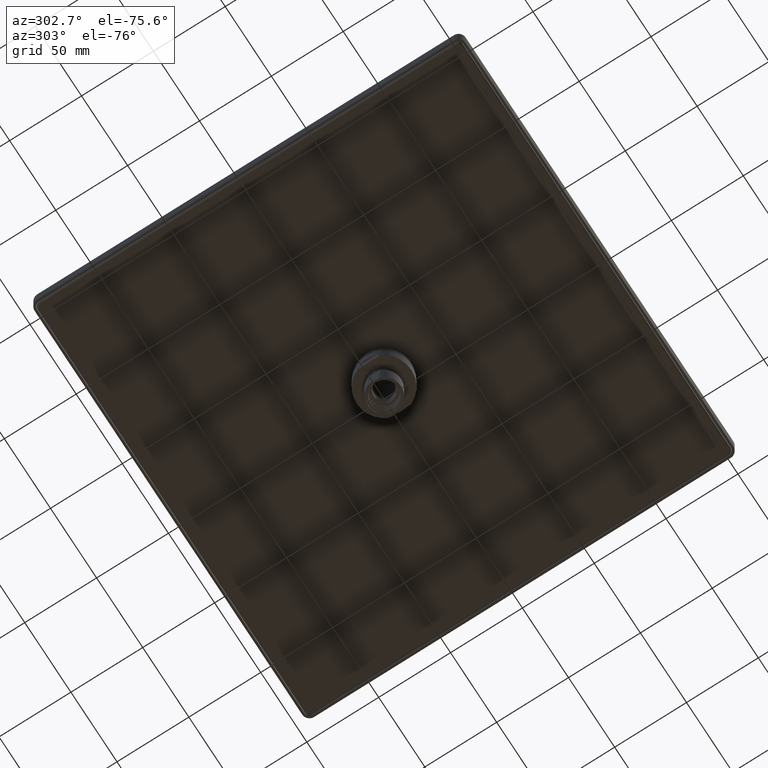
[diagram: clean part render]
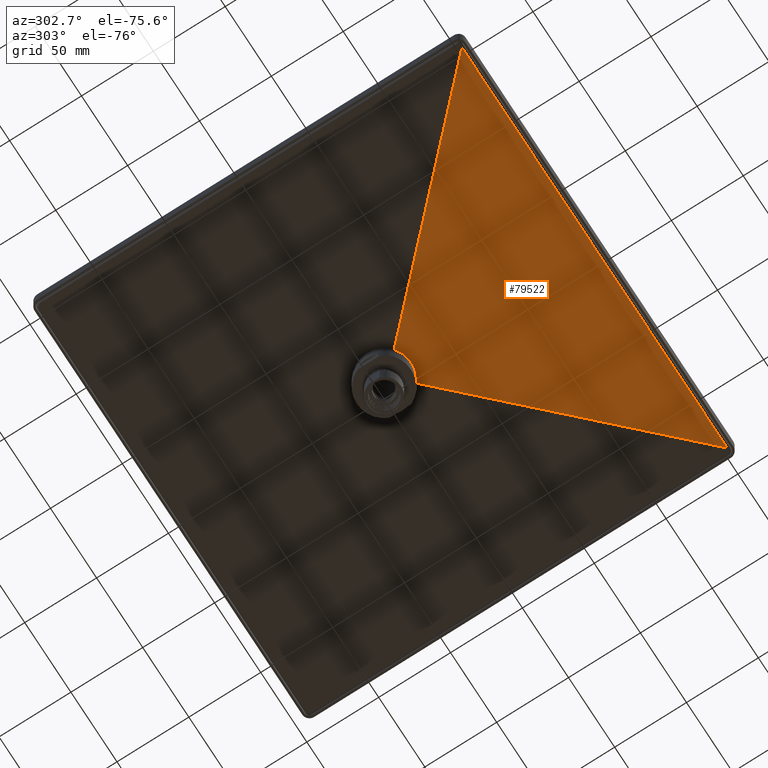
[diagram: same view with one face highlighted and labeled with its STEP entity id]
A machine part, auxiliary view. The second image highlights one B-rep face of the part: STEP entity #79522.
In plain terms, the highlighted planar face has unit normal (0, 0.0137, 0.9999).
Its self-contained STEP definition (entity closure, byte-faithful):
#78318=CARTESIAN_POINT('',(4.188700676331E-1,-5.270524384858E-1,
1.024022247137E-1));
#78319=CARTESIAN_POINT('',(3.575615083385E-1,-5.757768509029E-1,
1.017327289706E-1));
#78320=CARTESIAN_POINT('',(2.257088801407E-1,-6.467655864419E-1,
1.007573112304E-1));
#78321=CARTESIAN_POINT('',(7.831510730837E-2,-6.732283464567E-1,
1.003937007874E-1));
#78322=CARTESIAN_POINT('',(0.E0,-6.732283464567E-1,1.003937007874E-1));
#78446=DIRECTION('',(7.070734080763E-1,7.070734080762E-1,9.715512480473E-3));
#78447=VECTOR('',#78446,7.418483586977E0);
#78448=CARTESIAN_POINT('',(-5.664282540236E0,-5.772464911086E0,
3.032785483883E-2));
#78449=LINE('',#78448,#78447);
#78450=CARTESIAN_POINT('',(-4.188700676348E-1,-5.270524384844E-1,
1.024022247137E-1));
#78451=CARTESIAN_POINT('',(-3.575615083401E-1,-5.757768509020E-1,
1.017327289706E-1));
#78452=CARTESIAN_POINT('',(-2.257088801419E-1,-6.467655864417E-1,
1.007573112304E-1));
#78453=CARTESIAN_POINT('',(-7.831510730879E-2,-6.732283464567E-1,
1.003937007874E-1));
#78454=CARTESIAN_POINT('',(0.E0,-6.732283464567E-1,1.003937007874E-1));
#78456=DIRECTION('',(7.070734080764E-1,-7.070734080761E-1,-9.715512486016E-3));
#78457=VECTOR('',#78456,7.418483586976E0);
#78458=CARTESIAN_POINT('',(4.188700676323E-1,-5.270524384865E-1,
1.024022247140E-1));
#78459=LINE('',#78458,#78457);
#78464=DIRECTION('',(1.E0,5.746842402508E-14,-3.654693841650E-12));
#78465=VECTOR('',#78464,1.132856508047E1);
#78466=CARTESIAN_POINT('',(-5.664282540236E0,-5.772464911086E0,
3.032785483883E-2));
#78467=LINE('',#78466,#78465);
#78628=CARTESIAN_POINT('',(4.188700676323E-1,-5.270524384865E-1,
1.024022247140E-1));
#79193=VERTEX_POINT('',#78628);
#79194=VERTEX_POINT('',#78322);
#79219=VERTEX_POINT('',#78450);
#79224=CARTESIAN_POINT('',(-5.664282540236E0,-5.772464911086E0,
3.032785483883E-2));
#79225=CARTESIAN_POINT('',(5.664282540234E0,-5.772464911086E0,
3.032785479742E-2));
#79226=VERTEX_POINT('',#79224);
#79227=VERTEX_POINT('',#79225);
#79507=CARTESIAN_POINT('',(-6.535433070866E0,-5.830708661417E0,
2.952755905512E-2));
#79508=DIRECTION('',(0.E0,1.373916109839E-2,-9.999056132717E-1));
#79509=DIRECTION('',(0.E0,9.999056132717E-1,1.373916109839E-2));
#79510=AXIS2_PLACEMENT_3D('',#79507,#79508,#79509);
#79511=PLANE('',#79510);
#79513=ORIENTED_EDGE('',*,*,#79512,.F.);
#79515=ORIENTED_EDGE('',*,*,#79514,.T.);
#79516=ORIENTED_EDGE('',*,*,#79487,.T.);
#79517=ORIENTED_EDGE('',*,*,#79364,.F.);
#79519=ORIENTED_EDGE('',*,*,#79518,.T.);
#79520=EDGE_LOOP('',(#79513,#79515,#79516,#79517,#79519));
#79521=FACE_OUTER_BOUND('',#79520,.F.);
#79522=ADVANCED_FACE('',(#79521),#79511,.F.);
#78323=B_SPLINE_CURVE_WITH_KNOTS('',3,(#78318,#78319,#78320,#78321,#78322),
.UNSPECIFIED.,.F.,.F.,(4,1,4),(0.E0,5.E-1,1.E0),.UNSPECIFIED.);
#78455=B_SPLINE_CURVE_WITH_KNOTS('',3,(#78450,#78451,#78452,#78453,#78454),
.UNSPECIFIED.,.F.,.F.,(4,1,4),(0.E0,5.E-1,1.E0),.UNSPECIFIED.);
#79364=EDGE_CURVE('',#79193,#79194,#78323,.T.);
#79487=EDGE_CURVE('',#79219,#79194,#78455,.T.);
#79512=EDGE_CURVE('',#79226,#79227,#78467,.T.);
#79514=EDGE_CURVE('',#79226,#79219,#78449,.T.);
#79518=EDGE_CURVE('',#79193,#79227,#78459,.T.);